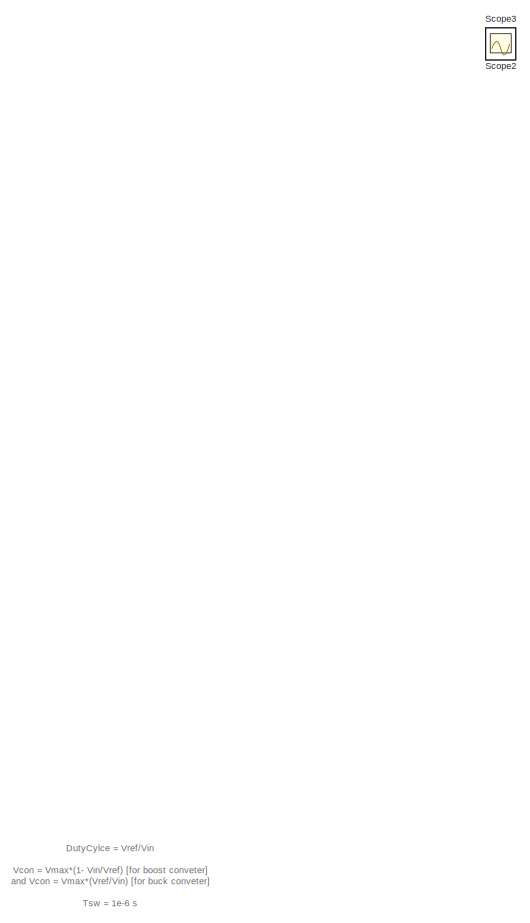
[diagram: root canvas - part 1/2, left side, full height]
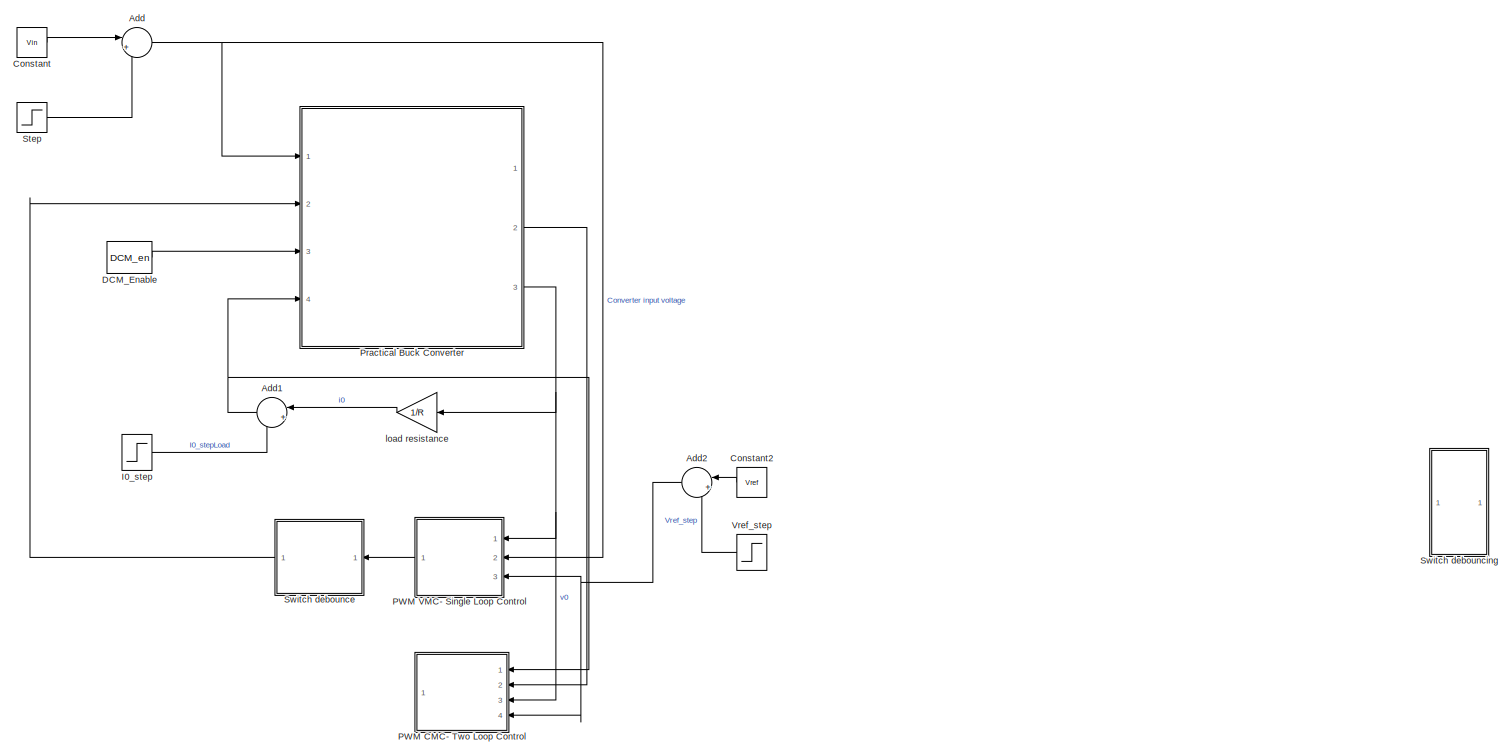
[diagram: root canvas - part 2/2, center side, full height]
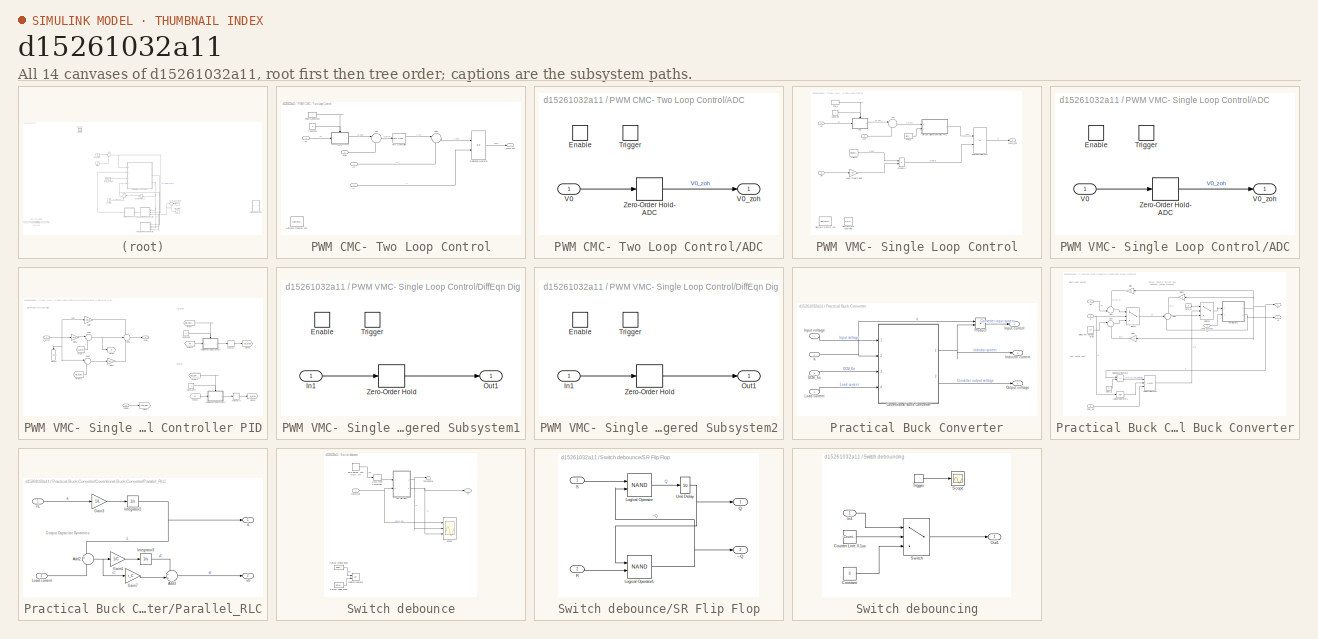
[diagram: thumbnail index - all 14 canvases of the model, root first then tree order]
MODEL slx_d15261032a11
KIND model
CONFIG AbsTol = auto
CONFIG EnableMultiTasking = off
CONFIG FixedStep = Ts
CONFIG InitFcn = %init_practical_voltage_source;\ninit_parameters;
CONFIG MaxStep = auto
CONFIG MinStep = auto
CONFIG PostLoadFcn = , if any(exist('dsrtsu_mdlpostloadfcn', 'file') == [2, 3, 6]), try dsrtsu_mdlpostloadfcn('Execute', bdroot); catch fprintf('Error in PostLoadFcn (dsrtsu_mdlpostloadfcn) for model "%s":\n %s\n', bdroot, lasterr); end, end, \n%init_practical_voltage_source;\ninit_parameters;\n
CONFIG RelTol = 1e-3
CONFIG SampleTimeConstraint = Unconstrained
CONFIG Solver = FixedStepAuto
CONFIG SolverName = FixedStepAuto
CONFIG StartTime = 0.0
CONFIG StopTime = 5e-3
BLOCK [Sum] Add
  IconShape = round
  InputSameDT = off
  Inputs = |++
  OutDataTypeStr = Inherit: Inherit via internal rule
  Ports = [2, 1]
  SaturateOnIntegerOverflow = off
BLOCK [Sum] Add1
  IconShape = round
  InputSameDT = off
  Inputs = |++
  OutDataTypeStr = Inherit: Inherit via internal rule
  Ports = [2, 1]
  SaturateOnIntegerOverflow = off
BLOCK [Sum] Add2
  IconShape = round
  InputSameDT = off
  Inputs = |++
  OutDataTypeStr = Inherit: Inherit via internal rule
  Ports = [2, 1]
  SaturateOnIntegerOverflow = off
BLOCK [Constant] Constant
  Value = Vin
BLOCK [Constant] Constant2
  Value = Vref
BLOCK [Constant] DCM_Enable
  OutDataTypeStr = boolean
  Value = DCM_en
BLOCK [Step] I0_step
  After = I0_final
  SampleTime = Ts
  Time = I0_stepTime
BLOCK [SubSystem] PWM CMC- Two Loop Control
  Ports = [4, 1]
  RequestExecContextInheritance = off
  Variant = off
BLOCK [SubSystem] PWM CMC- Two Loop Control/ADC
  Ports = [1, 1, 1, 1]
  RequestExecContextInheritance = off
  ShowPortLabels = none
  Variant = off
BLOCK [EnablePort] PWM CMC- Two Loop Control/ADC/Enable
  Ports = []
BLOCK [TriggerPort] PWM CMC- Two Loop Control/ADC/Trigger
  PortDimensions = 1
  Ports = []
  StatesWhenEnabling = held
  VariantControl = Variant
BLOCK [Inport] PWM CMC- Two Loop Control/ADC/V0
  IconDisplay = Port number
BLOCK [Outport] PWM CMC- Two Loop Control/ADC/V0_zoh
  IconDisplay = Port number
BLOCK [ZeroOrderHold] PWM CMC- Two Loop Control/ADC/Zero-Order Hold- ADC
  SampleTime = -1
BLOCK [Sum] PWM CMC- Two Loop Control/Add
  IconShape = round
  InputSameDT = off
  Inputs = |-+
  OutDataTypeStr = Inherit: Inherit via internal rule
  Ports = [2, 1]
  SaturateOnIntegerOverflow = off
BLOCK [Sum] PWM CMC- Two Loop Control/Add1
  IconShape = round
  InputSameDT = off
  Inputs = |++
  OutDataTypeStr = Inherit: Inherit via internal rule
  Ports = [2, 1]
  SaturateOnIntegerOverflow = off
BLOCK [Constant] PWM CMC- Two Loop Control/Constant
BLOCK [DiscreteTransferFcn] PWM CMC- Two Loop Control/Discrete Transfer Fcn
  Denominator = [1 -1]
  InputPortMap = u0
  Numerator = [(Kp_d+Ki_d+Kd_d) (-2*Kd_d)+Kp_d];
  Ports = [1, 1]
  SampleTime = Tsw
BLOCK [Inport] PWM CMC- Two Loop Control/I0
  IconDisplay = Port number
BLOCK [Inport] PWM CMC- Two Loop Control/IL
  IconDisplay = Port number
  Port = 2
BLOCK [Reference] PWM CMC- Two Loop Control/PID Controller  REF=simulink/Continuous/PID Controller
  Ports = [1, 1]
  SourceBlock = simulink/Continuous/PID Controller
  SourceProductBaseCode = SL
  SourceProductName = Simulink
  SourceType = PID 1dof
BLOCK [DiscretePulseGenerator] PWM CMC- Two Loop Control/Pulse Generator
  Period = Tsw
  PhaseDelay = t_s
  Ports = [0, 1]
  PulseType = Time based
BLOCK [RelationalOperator] PWM CMC- Two Loop Control/Relational Operator
  InputSameDT = off
  Operator = <=
  OutDataTypeStr = boolean
  Ports = [2, 1]
  RndMeth = Simplest
BLOCK [Inport] PWM CMC- Two Loop Control/V0
  IconDisplay = Port number
  Port = 3
BLOCK [Inport] PWM CMC- Two Loop Control/Vref
  IconDisplay = Port number
  Port = 4
BLOCK [Outport] PWM CMC- Two Loop Control/comp_out
  IconDisplay = Port number
BLOCK [SubSystem] PWM VMC- Single Loop Control
  Ports = [3, 1]
  RequestExecContextInheritance = off
  Variant = off
BLOCK [SubSystem] PWM VMC- Single Loop Control/ADC
  Ports = [1, 1, 1, 1]
  RequestExecContextInheritance = off
  ShowPortLabels = none
  Variant = off
BLOCK [EnablePort] PWM VMC- Single Loop Control/ADC/Enable
  Ports = []
BLOCK [TriggerPort] PWM VMC- Single Loop Control/ADC/Trigger
  PortDimensions = 1
  Ports = []
  StatesWhenEnabling = held
  VariantControl = Variant
BLOCK [Inport] PWM VMC- Single Loop Control/ADC/V0
  IconDisplay = Port number
BLOCK [Outport] PWM VMC- Single Loop Control/ADC/V0_zoh
  IconDisplay = Port number
  InitialOutput = V0_init
BLOCK [ZeroOrderHold] PWM VMC- Single Loop Control/ADC/Zero-Order Hold- ADC
  SampleTime = -1
BLOCK [Sum] PWM VMC- Single Loop Control/Add
  IconShape = round
  InputSameDT = off
  Inputs = |-+
  OutDataTypeStr = Inherit: Inherit via internal rule
  Ports = [2, 1]
  SaturateOnIntegerOverflow = off
BLOCK [Constant] PWM VMC- Single Loop Control/Constant
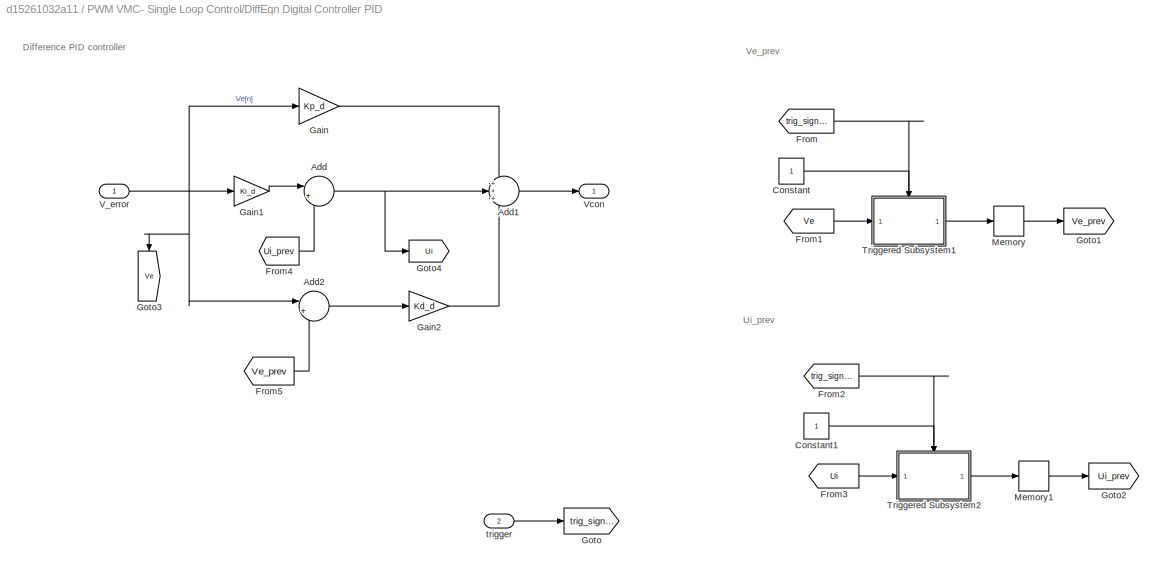
BLOCK [SubSystem] PWM VMC- Single Loop Control/DiffEqn Digital Controller PID
  Ports = [2, 1]
  RequestExecContextInheritance = off
  Variant = off
BLOCK [Sum] PWM VMC- Single Loop Control/DiffEqn Digital Controller PID/Add
  IconShape = round
  InputSameDT = off
  Inputs = |++
  OutDataTypeStr = Inherit: Inherit via internal rule
  Ports = [2, 1]
  SaturateOnIntegerOverflow = off
BLOCK [Sum] PWM VMC- Single Loop Control/DiffEqn Digital Controller PID/Add1
  IconShape = round
  InputSameDT = off
  Inputs = +++
  OutDataTypeStr = Inherit: Inherit via internal rule
  Ports = [3, 1]
  SaturateOnIntegerOverflow = off
BLOCK [Sum] PWM VMC- Single Loop Control/DiffEqn Digital Controller PID/Add2
  IconShape = round
  InputSameDT = off
  Inputs = |+-
  OutDataTypeStr = Inherit: Inherit via internal rule
  Ports = [2, 1]
  SaturateOnIntegerOverflow = off
BLOCK [Constant] PWM VMC- Single Loop Control/DiffEqn Digital Controller PID/Constant
BLOCK [Constant] PWM VMC- Single Loop Control/DiffEqn Digital Controller PID/Constant1
BLOCK [From] PWM VMC- Single Loop Control/DiffEqn Digital Controller PID/From
  GotoTag = trig_signal
BLOCK [From] PWM VMC- Single Loop Control/DiffEqn Digital Controller PID/From1
  GotoTag = Ve
BLOCK [From] PWM VMC- Single Loop Control/DiffEqn Digital Controller PID/From2
  GotoTag = trig_signal
BLOCK [From] PWM VMC- Single Loop Control/DiffEqn Digital Controller PID/From3
  GotoTag = Ui
BLOCK [From] PWM VMC- Single Loop Control/DiffEqn Digital Controller PID/From4
  GotoTag = Ui_prev
BLOCK [From] PWM VMC- Single Loop Control/DiffEqn Digital Controller PID/From5
  GotoTag = Ve_prev
BLOCK [Gain] PWM VMC- Single Loop Control/DiffEqn Digital Controller PID/Gain
  Gain = Kp_d
  OutDataTypeStr = Inherit: Inherit via internal rule
  ParamDataTypeStr = Inherit: Inherit via internal rule
  SaturateOnIntegerOverflow = off
BLOCK [Gain] PWM VMC- Single Loop Control/DiffEqn Digital Controller PID/Gain1
  Gain = Ki_d
  OutDataTypeStr = Inherit: Inherit via internal rule
  ParamDataTypeStr = Inherit: Inherit via internal rule
  SaturateOnIntegerOverflow = off
BLOCK [Gain] PWM VMC- Single Loop Control/DiffEqn Digital Controller PID/Gain2
  Gain = Kd_d
  OutDataTypeStr = Inherit: Inherit via internal rule
  ParamDataTypeStr = Inherit: Inherit via internal rule
  SaturateOnIntegerOverflow = off
BLOCK [Goto] PWM VMC- Single Loop Control/DiffEqn Digital Controller PID/Goto
  GotoTag = trig_signal
BLOCK [Goto] PWM VMC- Single Loop Control/DiffEqn Digital Controller PID/Goto1
  GotoTag = Ve_prev
BLOCK [Goto] PWM VMC- Single Loop Control/DiffEqn Digital Controller PID/Goto2
  GotoTag = Ui_prev
BLOCK [Goto] PWM VMC- Single Loop Control/DiffEqn Digital Controller PID/Goto3
  GotoTag = Ve
BLOCK [Goto] PWM VMC- Single Loop Control/DiffEqn Digital Controller PID/Goto4
  GotoTag = Ui
BLOCK [Memory] PWM VMC- Single Loop Control/DiffEqn Digital Controller PID/Memory
BLOCK [Memory] PWM VMC- Single Loop Control/DiffEqn Digital Controller PID/Memory1
BLOCK [SubSystem] PWM VMC- Single Loop Control/DiffEqn Digital Controller PID/Triggered Subsystem1
  Ports = [1, 1, 1, 1]
  RequestExecContextInheritance = off
  ShowPortLabels = none
  Variant = off
BLOCK [EnablePort] PWM VMC- Single Loop Control/DiffEqn Digital Controller PID/Triggered Subsystem1/Enable
  Ports = []
BLOCK [Inport] PWM VMC- Single Loop Control/DiffEqn Digital Controller PID/Triggered Subsystem1/In1
  IconDisplay = Port number
BLOCK [Outport] PWM VMC- Single Loop Control/DiffEqn Digital Controller PID/Triggered Subsystem1/Out1
  IconDisplay = Port number
BLOCK [TriggerPort] PWM VMC- Single Loop Control/DiffEqn Digital Controller PID/Triggered Subsystem1/Trigger
  PortDimensions = 1
  Ports = []
  StatesWhenEnabling = held
  VariantControl = Variant
BLOCK [ZeroOrderHold] PWM VMC- Single Loop Control/DiffEqn Digital Controller PID/Triggered Subsystem1/Zero-Order Hold
  SampleTime = -1
BLOCK [SubSystem] PWM VMC- Single Loop Control/DiffEqn Digital Controller PID/Triggered Subsystem2
  Ports = [1, 1, 1, 1]
  RequestExecContextInheritance = off
  ShowPortLabels = none
  Variant = off
BLOCK [EnablePort] PWM VMC- Single Loop Control/DiffEqn Digital Controller PID/Triggered Subsystem2/Enable
  Ports = []
BLOCK [Inport] PWM VMC- Single Loop Control/DiffEqn Digital Controller PID/Triggered Subsystem2/In1
  IconDisplay = Port number
BLOCK [Outport] PWM VMC- Single Loop Control/DiffEqn Digital Controller PID/Triggered Subsystem2/Out1
  IconDisplay = Port number
BLOCK [TriggerPort] PWM VMC- Single Loop Control/DiffEqn Digital Controller PID/Triggered Subsystem2/Trigger
  PortDimensions = 1
  Ports = []
  StatesWhenEnabling = held
  VariantControl = Variant
BLOCK [ZeroOrderHold] PWM VMC- Single Loop Control/DiffEqn Digital Controller PID/Triggered Subsystem2/Zero-Order Hold
  SampleTime = -1
BLOCK [Inport] PWM VMC- Single Loop Control/DiffEqn Digital Controller PID/V_error
  IconDisplay = Port number
BLOCK [Outport] PWM VMC- Single Loop Control/DiffEqn Digital Controller PID/Vcon
  IconDisplay = Port number
BLOCK [Inport] PWM VMC- Single Loop Control/DiffEqn Digital Controller PID/trigger
  IconDisplay = Port number
  Port = 2
BLOCK [Reference] PWM VMC- Single Loop Control/Discrete PID Controller  REF=simulink/Continuous/PID Controller
  Commented = on
  Ports = [1, 1]
  SourceBlock = simulink/Continuous/PID Controller
  SourceProductBaseCode = SL
  SourceProductName = Simulink
  SourceType = PID 1dof
BLOCK [DiscreteTransferFcn] PWM VMC- Single Loop Control/Discrete Transfer Fcn
  Commented = on
  Denominator = den_con
  InputPortMap = u0
  Numerator = num_con
  Ports = [1, 1]
  SampleTime = Tsw
BLOCK [DiscretePulseGenerator] PWM VMC- Single Loop Control/Fsw_1
  Period = Tsw
  PhaseDelay = t_s
  Ports = [0, 1]
  PulseType = Time based
BLOCK [DiscretePulseGenerator] PWM VMC- Single Loop Control/Fsw_2
  Period = Tsw
  PhaseDelay = t_del
  Ports = [0, 1]
  PulseType = Time based
BLOCK [Product] PWM VMC- Single Loop Control/Product1
  InputSameDT = off
  OutDataTypeStr = Inherit: Inherit via internal rule
  Ports = [2, 1]
  RndMeth = Floor
  SaturateOnIntegerOverflow = off
BLOCK [RelationalOperator] PWM VMC- Single Loop Control/Relational Operator
  InputSameDT = off
  Operator = <=
  OutDataTypeStr = boolean
  Ports = [2, 1]
  RndMeth = Simplest
BLOCK [Inport] PWM VMC- Single Loop Control/V0
  IconDisplay = Port number
BLOCK [Inport] PWM VMC- Single Loop Control/Vin
  IconDisplay = Port number
  Port = 2
BLOCK [Reference] PWM VMC- Single Loop Control/Vramp  REF=simulink/Sources/Repeating
Sequence
  Ports = [0, 1]
  SourceBlock = simulink/Sources/Repeating\nSequence
  SourceProductBaseCode = SL
  SourceType = Repeating table
BLOCK [Inport] PWM VMC- Single Loop Control/Vref
  IconDisplay = Port number
  Port = 3
BLOCK [Outport] PWM VMC- Single Loop Control/comp_out
  IconDisplay = Port number
BLOCK [Gain] PWM VMC- Single Loop Control/feed-forward gain
  Gain = Vff
  OutDataTypeStr = Inherit: Inherit via internal rule
  ParamDataTypeStr = Inherit: Inherit via internal rule
  SaturateOnIntegerOverflow = off
BLOCK [SubSystem] Practical Buck Converter
  Ports = [4, 3]
  RequestExecContextInheritance = off
  Variant = off
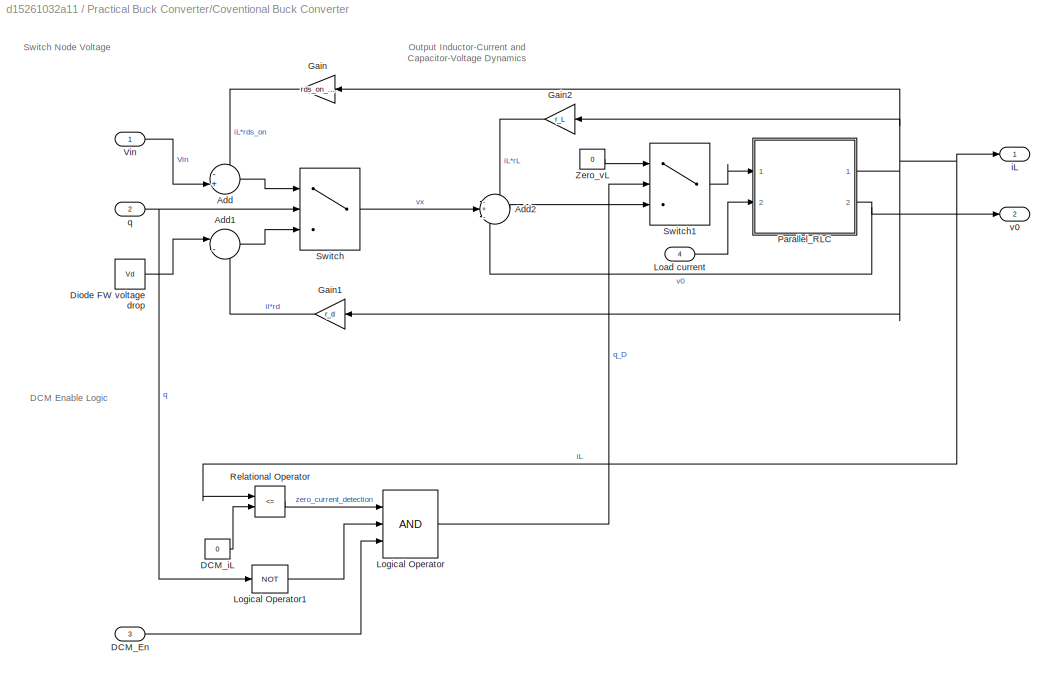
BLOCK [SubSystem] Practical Buck Converter/Coventional Buck Converter
  Ports = [4, 2]
  RequestExecContextInheritance = off
  Variant = off
BLOCK [Sum] Practical Buck Converter/Coventional Buck Converter/Add
  IconShape = round
  InputSameDT = off
  Inputs = -+|
  OutDataTypeStr = Inherit: Inherit via internal rule
  Ports = [2, 1]
  SaturateOnIntegerOverflow = off
BLOCK [Sum] Practical Buck Converter/Coventional Buck Converter/Add1
  IconShape = round
  InputSameDT = off
  Inputs = |--
  OutDataTypeStr = Inherit: Inherit via internal rule
  Ports = [2, 1]
  SaturateOnIntegerOverflow = off
BLOCK [Sum] Practical Buck Converter/Coventional Buck Converter/Add2
  IconShape = round
  InputSameDT = off
  Inputs = -+-
  OutDataTypeStr = Inherit: Inherit via internal rule
  Ports = [3, 1]
  SaturateOnIntegerOverflow = off
BLOCK [Inport] Practical Buck Converter/Coventional Buck Converter/DCM_En
  IconDisplay = Port number
  Port = 3
BLOCK [Constant] Practical Buck Converter/Coventional Buck Converter/DCM_iL
  Value = 0
BLOCK [Constant] Practical Buck Converter/Coventional Buck Converter/Diode FW voltage drop
  Value = Vd
BLOCK [Gain] Practical Buck Converter/Coventional Buck Converter/Gain
  Gain = rds_on_sw1
  OutDataTypeStr = Inherit: Inherit via internal rule
  ParamDataTypeStr = Inherit: Inherit via internal rule
  SaturateOnIntegerOverflow = off
BLOCK [Gain] Practical Buck Converter/Coventional Buck Converter/Gain1
  Gain = r_d
  OutDataTypeStr = Inherit: Inherit via internal rule
  ParamDataTypeStr = Inherit: Inherit via internal rule
  SaturateOnIntegerOverflow = off
BLOCK [Gain] Practical Buck Converter/Coventional Buck Converter/Gain2
  Gain = r_L
  OutDataTypeStr = Inherit: Inherit via internal rule
  ParamDataTypeStr = Inherit: Inherit via internal rule
  SaturateOnIntegerOverflow = off
BLOCK [Inport] Practical Buck Converter/Coventional Buck Converter/Load current
  IconDisplay = Port number
  Port = 4
BLOCK [Logic] Practical Buck Converter/Coventional Buck Converter/Logical Operator
  AllPortsSameDT = off
  IconShape = distinctive
  Inputs = 3
  OutDataTypeStr = boolean
  Ports = [3, 1]
BLOCK [Logic] Practical Buck Converter/Coventional Buck Converter/Logical Operator1
  AllPortsSameDT = off
  IconShape = distinctive
  Inputs = 3
  Operator = NOT
  OutDataTypeStr = boolean
  Ports = [1, 1]
BLOCK [SubSystem] Practical Buck Converter/Coventional Buck Converter/Parallel_RLC
  Ports = [2, 2]
  RequestExecContextInheritance = off
  Variant = off
BLOCK [Sum] Practical Buck Converter/Coventional Buck Converter/Parallel_RLC/Add2
  IconShape = round
  InputSameDT = off
  Inputs = +|-
  OutDataTypeStr = Inherit: Inherit via internal rule
  Ports = [2, 1]
  SaturateOnIntegerOverflow = off
BLOCK [Sum] Practical Buck Converter/Coventional Buck Converter/Parallel_RLC/Add3
  IconShape = round
  InputSameDT = off
  Inputs = ++|
  OutDataTypeStr = Inherit: Inherit via internal rule
  Ports = [2, 1]
  SaturateOnIntegerOverflow = off
BLOCK [Gain] Practical Buck Converter/Coventional Buck Converter/Parallel_RLC/Gain3
  Gain = 1/L
  OutDataTypeStr = Inherit: Inherit via internal rule
  ParamDataTypeStr = Inherit: Inherit via internal rule
  SaturateOnIntegerOverflow = off
BLOCK [Gain] Practical Buck Converter/Coventional Buck Converter/Parallel_RLC/Gain4
  Gain = 1/C
  OutDataTypeStr = Inherit: Inherit via internal rule
  ParamDataTypeStr = Inherit: Inherit via internal rule
  SaturateOnIntegerOverflow = off
BLOCK [Gain] Practical Buck Converter/Coventional Buck Converter/Parallel_RLC/Gain7
  Gain = r_C
  OutDataTypeStr = Inherit: Inherit via internal rule
  ParamDataTypeStr = Inherit: Inherit via internal rule
  SaturateOnIntegerOverflow = off
BLOCK [Integrator] Practical Buck Converter/Coventional Buck Converter/Parallel_RLC/Integrator2
  InitialCondition = i_L_init
  Ports = [1, 1]
BLOCK [Integrator] Practical Buck Converter/Coventional Buck Converter/Parallel_RLC/Integrator3
  InitialCondition = v_C_init
  Ports = [1, 1]
BLOCK [Inport] Practical Buck Converter/Coventional Buck Converter/Parallel_RLC/Load current
  IconDisplay = Port number
  Port = 2
BLOCK [Outport] Practical Buck Converter/Coventional Buck Converter/Parallel_RLC/iL
  IconDisplay = Port number
BLOCK [Outport] Practical Buck Converter/Coventional Buck Converter/Parallel_RLC/v0
  IconDisplay = Port number
  Port = 2
BLOCK [Inport] Practical Buck Converter/Coventional Buck Converter/Parallel_RLC/vL
  IconDisplay = Port number
BLOCK [RelationalOperator] Practical Buck Converter/Coventional Buck Converter/Relational Operator
  InputSameDT = off
  Operator = <=
  OutDataTypeStr = boolean
  Ports = [2, 1]
  RndMeth = Simplest
BLOCK [Switch] Practical Buck Converter/Coventional Buck Converter/Switch
  Criteria = u2 > Threshold
  InputSameDT = off
  SaturateOnIntegerOverflow = off
  Threshold = 0.5
BLOCK [Switch] Practical Buck Converter/Coventional Buck Converter/Switch1
  Criteria = u2 > Threshold
  InputSameDT = off
  SaturateOnIntegerOverflow = off
  Threshold = 0.5
BLOCK [Inport] Practical Buck Converter/Coventional Buck Converter/Vin
  IconDisplay = Port number
BLOCK [Constant] Practical Buck Converter/Coventional Buck Converter/Zero_vL
  Value = 0
BLOCK [Outport] Practical Buck Converter/Coventional Buck Converter/iL
  IconDisplay = Port number
BLOCK [Inport] Practical Buck Converter/Coventional Buck Converter/q
  IconDisplay = Port number
  Port = 2
BLOCK [Outport] Practical Buck Converter/Coventional Buck Converter/v0
  IconDisplay = Port number
  Port = 2
BLOCK [Inport] Practical Buck Converter/DCM_En
  IconDisplay = Port number
  Port = 3
BLOCK [Outport] Practical Buck Converter/Inductor current
  IconDisplay = Port number
  Port = 2
BLOCK [Outport] Practical Buck Converter/Input current
  IconDisplay = Port number
BLOCK [Inport] Practical Buck Converter/Input voltage
  IconDisplay = Port number
BLOCK [Inport] Practical Buck Converter/Load Current
  IconDisplay = Port number
  Port = 4
BLOCK [Outport] Practical Buck Converter/Output voltage
  IconDisplay = Port number
  Port = 3
BLOCK [Product] Practical Buck Converter/Product
  InputSameDT = off
  OutDataTypeStr = Inherit: Inherit via internal rule
  Ports = [2, 1]
  RndMeth = Floor
  SaturateOnIntegerOverflow = off
BLOCK [Inport] Practical Buck Converter/q
  IconDisplay = Port number
  Port = 2
BLOCK [Scope] Scope2
  IOType = viewer
  NumInputPorts = 1
  Ports = []
  ScopeSpecificationString = Simulink.scopes.TimeScopeBlockCfg('CurrentConfiguration', extmgr.ConfigurationSet(extmgr.Configuration('Core','General UI',true),extmgr.Configuration('Core','Source UI',true),extmgr.Configuration('Sources','WiredSimulink',true,'DataLoggingVariableName','ScopeData1'),extmgr.Configuration('Visuals','Time Domain',true,'SerializedDisplays',{struct('MinYLimReal','-0.125','MaxYLimReal','1.125','YLabelRe...<+1482ch>
BLOCK [Scope] Scope3
  IOType = viewer
  NumInputPorts = 1
  Ports = []
  ScopeSpecificationString = Simulink.scopes.TimeScopeBlockCfg('CurrentConfiguration', extmgr.ConfigurationSet(extmgr.Configuration('Core','General UI',true),extmgr.Configuration('Core','Source UI',true),extmgr.Configuration('Sources','WiredSimulink',true,'DataLoggingVariableName','ScopeData2'),extmgr.Configuration('Visuals','Time Domain',true,'SerializedDisplays',{struct('MinYLimReal','-5.75','MaxYLimReal','51.75','YLabelRea...<+1775ch>
BLOCK [Step] Step
  After = Vin_final
  SampleTime = 0
  Time = T_Vin_stepTime
BLOCK [SubSystem] Switch debounce
  Ports = [1, 1]
  RequestExecContextInheritance = off
  Variant = off
BLOCK [DataTypeConversion] Switch debounce/Data Type Conversion
  RndMeth = Floor
  SaturateOnIntegerOverflow = off
BLOCK [Reference] Switch debounce/Detect Falling enge  REF=simulink/Logic and Bit
Operations/Detect
Decrease
  Commented = on
  Ports = [1, 1]
  SourceBlock = simulink/Logic and Bit\nOperations/Detect\nDecrease
  SourceProductBaseCode = SL
  SourceType = Detect Decrease
BLOCK [Reference] Switch debounce/Detect Rising edge  REF=simulink/Logic and Bit
Operations/Detect
Increase
  Commented = on
  Ports = [1, 1]
  SourceBlock = simulink/Logic and Bit\nOperations/Detect\nIncrease
  SourceProductBaseCode = SL
  SourceType = Detect Increase
BLOCK [Logic] Switch debounce/Logical Operator
  AllPortsSameDT = off
  Commented = on
  IconShape = distinctive
  Operator = OR
  OutDataTypeStr = boolean
  Ports = [2, 1]
BLOCK [SubSystem] Switch debounce/SR Flip Flop
  Ports = [2, 2]
  RequestExecContextInheritance = off
  Variant = off
BLOCK [Logic] Switch debounce/SR Flip Flop/Logical Operator
  AllPortsSameDT = off
  IconShape = distinctive
  Operator = NAND
  OutDataTypeStr = boolean
  Ports = [2, 1]
BLOCK [Logic] Switch debounce/SR Flip Flop/Logical Operator1
  AllPortsSameDT = off
  IconShape = distinctive
  Operator = NAND
  OutDataTypeStr = boolean
  Ports = [2, 1]
BLOCK [Outport] Switch debounce/SR Flip Flop/Q
  IconDisplay = Port number
BLOCK [Inport] Switch debounce/SR Flip Flop/R
  IconDisplay = Port number
  Port = 2
BLOCK [Inport] Switch debounce/SR Flip Flop/S
  IconDisplay = Port number
BLOCK [UnitDelay] Switch debounce/SR Flip Flop/Unit Delay
  InputProcessing = Elements as channels (sample based)
  SampleTime = -1
BLOCK [Outport] Switch debounce/SR Flip Flop/~Q
  IconDisplay = Port number
  Port = 2
BLOCK [Scope] Switch debounce/Scope
  NumInputPorts = 3
  Ports = [3]
  ScopeSpecificationString = Simulink.scopes.TimeScopeBlockCfg('CurrentConfiguration', extmgr.ConfigurationSet(extmgr.Configuration('Core','General UI',true),extmgr.Configuration('Core','Source UI',true),extmgr.Configuration('Sources','WiredSimulink',true,'DataLoggingVariableName','ScopeData2'),extmgr.Configuration('Visuals','Time Domain',true,'SerializedDisplays',{struct('MinYLimReal','-0.125','MaxYLimReal','1.125','YLabelRe...<+2796ch>
BLOCK [Terminator] Switch debounce/Terminator
BLOCK [DiscretePulseGenerator] Switch debounce/Time period: Tsw Duty: 1%
  Period = Tsw
  Ports = [0, 1]
  PulseType = Time based
BLOCK [Inport] Switch debounce/comp_out
  IconDisplay = Port number
BLOCK [Outport] Switch debounce/~q
  IconDisplay = Port number
BLOCK [SubSystem] Switch debouncing
  Commented = on
  Ports = [1, 1, 0, 1]
  RequestExecContextInheritance = off
  TreatAsAtomicUnit = on
  Variant = off
BLOCK [Constant] Switch debouncing/Constant
  Value = 0
BLOCK [Reference] Switch debouncing/Counter Linit: 0.1us  REF=simulink/Sources/Counter
Limited
  Ports = [0, 1]
  SourceBlock = simulink/Sources/Counter\nLimited
  SourceProductBaseCode = SL
  SourceType = Counter Limited
BLOCK [Inport] Switch debouncing/In1
  IconDisplay = Port number
BLOCK [Outport] Switch debouncing/Out1
  IconDisplay = Port number
BLOCK [Scope] Switch debouncing/Scope
  NumInputPorts = 1
  Ports = [1]
  ScopeSpecificationString = Simulink.scopes.TimeScopeBlockCfg('CurrentConfiguration', extmgr.ConfigurationSet(extmgr.Configuration('Core','General UI',true),extmgr.Configuration('Core','Source UI',true),extmgr.Configuration('Sources','WiredSimulink',true,'DataLoggingVariableName','ScopeData4'),extmgr.Configuration('Visuals','Time Domain',true,'SerializedDisplays',{struct('MinYLimReal','0.9','MaxYLimReal','1.1','YLabelReal','...<+1357ch>
BLOCK [Switch] Switch debouncing/Switch
  InputSameDT = off
  SaturateOnIntegerOverflow = off
  Threshold = (0.45e-6/Ts) + 1
BLOCK [TriggerPort] Switch debouncing/Trigger
  PortDimensions = 1
  Ports = [0, 1]
  ShowOutputPort = on
  StatesWhenEnabling = held
  VariantControl = Variant
BLOCK [Step] Vref_step
  After = Vref_final
  SampleTime = Ts
  Time = Vref_stepTime
BLOCK [Gain] load resistance
  Gain = 1/R
  OutDataTypeStr = Inherit: Inherit via internal rule
  ParamDataTypeStr = Inherit: Inherit via internal rule
  SaturateOnIntegerOverflow = off
ANNOTATION (root): DutyCylce = Vref/Vin Vcon = Vmax*(1- Vin/Vref) [for boost conveter] and Vcon = Vmax*(Vref/Vin) [for buck conveter] Tsw = 1e-6 s Vref starts with 3.3V and after 1ms, it is set to 2.3V. DutyCycle shall be adapted accordingly and coverter states can be observed. Ideal voltage source is replaced by practical voltage source to aacout for psu output impedance (i.e. output resistance and finit bandwidt) ...<+125ch>
ANNOTATION PWM VMC- Single Loop Control/DiffEqn Digital Controller PID: Difference PID controller
ANNOTATION PWM VMC- Single Loop Control/DiffEqn Digital Controller PID: Ui_prev
ANNOTATION PWM VMC- Single Loop Control/DiffEqn Digital Controller PID: Ve_prev
ANNOTATION Practical Buck Converter/Coventional Buck Converter: DCM Enable Logic
ANNOTATION Practical Buck Converter/Coventional Buck Converter: Output Inductor-Current and Capacitor-Voltage Dynamics
ANNOTATION Practical Buck Converter/Coventional Buck Converter: Switch Node Voltage
ANNOTATION Practical Buck Converter/Coventional Buck Converter/Parallel_RLC: Output Capacitor Dynamics
NET Add1:1 -> PWM CMC- Two Loop Control:1, Practical Buck Converter:4
NET Add2:1 -> PWM CMC- Two Loop Control:4, PWM VMC- Single Loop Control:3
NET Add:1 -> PWM VMC- Single Loop Control:2, Practical Buck Converter:1
LINE Constant2:1 -> Add2:1
LINE Constant:1 -> Add:1
LINE DCM_Enable:1 -> Practical Buck Converter:3
LINE I0_step:1 -> Add1:2
LINE PWM CMC- Two Loop Control/ADC/V0:1 -> PWM CMC- Two Loop Control/ADC/Zero-Order Hold- ADC:1
LINE PWM CMC- Two Loop Control/ADC/Zero-Order Hold- ADC:1 -> PWM CMC- Two Loop Control/ADC/V0_zoh:1
LINE PWM CMC- Two Loop Control/ADC:1 -> PWM CMC- Two Loop Control/Add:1
LINE PWM CMC- Two Loop Control/Add1:1 -> PWM CMC- Two Loop Control/Relational Operator:1
LINE PWM CMC- Two Loop Control/Add:1 -> PWM CMC- Two Loop Control/PID Controller:1
LINE PWM CMC- Two Loop Control/Constant:1 -> PWM CMC- Two Loop Control/ADC:enable
LINE PWM CMC- Two Loop Control/I0:1 -> PWM CMC- Two Loop Control/Add1:2
LINE PWM CMC- Two Loop Control/IL:1 -> PWM CMC- Two Loop Control/Relational Operator:2
LINE PWM CMC- Two Loop Control/PID Controller:1 -> PWM CMC- Two Loop Control/Add1:1
LINE PWM CMC- Two Loop Control/Pulse Generator:1 -> PWM CMC- Two Loop Control/ADC:trigger
LINE PWM CMC- Two Loop Control/Relational Operator:1 -> PWM CMC- Two Loop Control/comp_out:1
LINE PWM CMC- Two Loop Control/V0:1 -> PWM CMC- Two Loop Control/ADC:1
LINE PWM CMC- Two Loop Control/Vref:1 -> PWM CMC- Two Loop Control/Add:2
LINE PWM VMC- Single Loop Control/ADC/V0:1 -> PWM VMC- Single Loop Control/ADC/Zero-Order Hold- ADC:1
LINE PWM VMC- Single Loop Control/ADC/Zero-Order Hold- ADC:1 -> PWM VMC- Single Loop Control/ADC/V0_zoh:1
LINE PWM VMC- Single Loop Control/ADC:1 -> PWM VMC- Single Loop Control/Add:1
LINE PWM VMC- Single Loop Control/Add:1 -> PWM VMC- Single Loop Control/DiffEqn Digital Controller PID:1
LINE PWM VMC- Single Loop Control/Constant:1 -> PWM VMC- Single Loop Control/ADC:enable
LINE PWM VMC- Single Loop Control/DiffEqn Digital Controller PID/Add1:1 -> PWM VMC- Single Loop Control/DiffEqn Digital Controller PID/Vcon:1
LINE PWM VMC- Single Loop Control/DiffEqn Digital Controller PID/Add2:1 -> PWM VMC- Single Loop Control/DiffEqn Digital Controller PID/Gain2:1
NET PWM VMC- Single Loop Control/DiffEqn Digital Controller PID/Add:1 -> PWM VMC- Single Loop Control/DiffEqn Digital Controller PID/Add1:2, PWM VMC- Single Loop Control/DiffEqn Digital Controller PID/Goto4:1
LINE PWM VMC- Single Loop Control/DiffEqn Digital Controller PID/Constant1:1 -> PWM VMC- Single Loop Control/DiffEqn Digital Controller PID/Triggered Subsystem2:enable
LINE PWM VMC- Single Loop Control/DiffEqn Digital Controller PID/Constant:1 -> PWM VMC- Single Loop Control/DiffEqn Digital Controller PID/Triggered Subsystem1:enable
LINE PWM VMC- Single Loop Control/DiffEqn Digital Controller PID/From1:1 -> PWM VMC- Single Loop Control/DiffEqn Digital Controller PID/Triggered Subsystem1:1
LINE PWM VMC- Single Loop Control/DiffEqn Digital Controller PID/From2:1 -> PWM VMC- Single Loop Control/DiffEqn Digital Controller PID/Triggered Subsystem2:trigger
LINE PWM VMC- Single Loop Control/DiffEqn Digital Controller PID/From3:1 -> PWM VMC- Single Loop Control/DiffEqn Digital Controller PID/Triggered Subsystem2:1
LINE PWM VMC- Single Loop Control/DiffEqn Digital Controller PID/From4:1 -> PWM VMC- Single Loop Control/DiffEqn Digital Controller PID/Add:2
LINE PWM VMC- Single Loop Control/DiffEqn Digital Controller PID/From5:1 -> PWM VMC- Single Loop Control/DiffEqn Digital Controller PID/Add2:2
LINE PWM VMC- Single Loop Control/DiffEqn Digital Controller PID/From:1 -> PWM VMC- Single Loop Control/DiffEqn Digital Controller PID/Triggered Subsystem1:trigger
LINE PWM VMC- Single Loop Control/DiffEqn Digital Controller PID/Gain1:1 -> PWM VMC- Single Loop Control/DiffEqn Digital Controller PID/Add:1
LINE PWM VMC- Single Loop Control/DiffEqn Digital Controller PID/Gain2:1 -> PWM VMC- Single Loop Control/DiffEqn Digital Controller PID/Add1:3
LINE PWM VMC- Single Loop Control/DiffEqn Digital Controller PID/Gain:1 -> PWM VMC- Single Loop Control/DiffEqn Digital Controller PID/Add1:1
LINE PWM VMC- Single Loop Control/DiffEqn Digital Controller PID/Memory1:1 -> PWM VMC- Single Loop Control/DiffEqn Digital Controller PID/Goto2:1
LINE PWM VMC- Single Loop Control/DiffEqn Digital Controller PID/Memory:1 -> PWM VMC- Single Loop Control/DiffEqn Digital Controller PID/Goto1:1
LINE PWM VMC- Single Loop Control/DiffEqn Digital Controller PID/Triggered Subsystem1/In1:1 -> PWM VMC- Single Loop Control/DiffEqn Digital Controller PID/Triggered Subsystem1/Zero-Order Hold:1
LINE PWM VMC- Single Loop Control/DiffEqn Digital Controller PID/Triggered Subsystem1/Zero-Order Hold:1 -> PWM VMC- Single Loop Control/DiffEqn Digital Controller PID/Triggered Subsystem1/Out1:1
LINE PWM VMC- Single Loop Control/DiffEqn Digital Controller PID/Triggered Subsystem1:1 -> PWM VMC- Single Loop Control/DiffEqn Digital Controller PID/Memory:1
LINE PWM VMC- Single Loop Control/DiffEqn Digital Controller PID/Triggered Subsystem2/In1:1 -> PWM VMC- Single Loop Control/DiffEqn Digital Controller PID/Triggered Subsystem2/Zero-Order Hold:1
LINE PWM VMC- Single Loop Control/DiffEqn Digital Controller PID/Triggered Subsystem2/Zero-Order Hold:1 -> PWM VMC- Single Loop Control/DiffEqn Digital Controller PID/Triggered Subsystem2/Out1:1
LINE PWM VMC- Single Loop Control/DiffEqn Digital Controller PID/Triggered Subsystem2:1 -> PWM VMC- Single Loop Control/DiffEqn Digital Controller PID/Memory1:1
NET PWM VMC- Single Loop Control/DiffEqn Digital Controller PID/V_error:1 -> PWM VMC- Single Loop Control/DiffEqn Digital Controller PID/Add2:1, PWM VMC- Single Loop Control/DiffEqn Digital Controller PID/Gain1:1, PWM VMC- Single Loop Control/DiffEqn Digital Controller PID/Gain:1, PWM VMC- Single Loop Control/DiffEqn Digital Controller PID/Goto3:1
LINE PWM VMC- Single Loop Control/DiffEqn Digital Controller PID/trigger:1 -> PWM VMC- Single Loop Control/DiffEqn Digital Controller PID/Goto:1
LINE PWM VMC- Single Loop Control/DiffEqn Digital Controller PID:1 -> PWM VMC- Single Loop Control/Relational Operator:1
LINE PWM VMC- Single Loop Control/Fsw_1:1 -> PWM VMC- Single Loop Control/ADC:trigger
LINE PWM VMC- Single Loop Control/Fsw_2:1 -> PWM VMC- Single Loop Control/DiffEqn Digital Controller PID:2
LINE PWM VMC- Single Loop Control/Product1:1 -> PWM VMC- Single Loop Control/Relational Operator:2
LINE PWM VMC- Single Loop Control/Relational Operator:1 -> PWM VMC- Single Loop Control/comp_out:1
LINE PWM VMC- Single Loop Control/V0:1 -> PWM VMC- Single Loop Control/ADC:1
LINE PWM VMC- Single Loop Control/Vin:1 -> PWM VMC- Single Loop Control/feed-forward gain:1
LINE PWM VMC- Single Loop Control/Vramp:1 -> PWM VMC- Single Loop Control/Product1:1
LINE PWM VMC- Single Loop Control/Vref:1 -> PWM VMC- Single Loop Control/Add:2
LINE PWM VMC- Single Loop Control/feed-forward gain:1 -> PWM VMC- Single Loop Control/Product1:2
LINE PWM VMC- Single Loop Control:1 -> Switch debounce:1
LINE Practical Buck Converter/Coventional Buck Converter/Add1:1 -> Practical Buck Converter/Coventional Buck Converter/Switch:3
LINE Practical Buck Converter/Coventional Buck Converter/Add2:1 -> Practical Buck Converter/Coventional Buck Converter/Switch1:3
LINE Practical Buck Converter/Coventional Buck Converter/Add:1 -> Practical Buck Converter/Coventional Buck Converter/Switch:1
LINE Practical Buck Converter/Coventional Buck Converter/DCM_En:1 -> Practical Buck Converter/Coventional Buck Converter/Logical Operator:3
LINE Practical Buck Converter/Coventional Buck Converter/DCM_iL:1 -> Practical Buck Converter/Coventional Buck Converter/Relational Operator:2
LINE Practical Buck Converter/Coventional Buck Converter/Diode FW voltage drop:1 -> Practical Buck Converter/Coventional Buck Converter/Add1:1
LINE Practical Buck Converter/Coventional Buck Converter/Gain1:1 -> Practical Buck Converter/Coventional Buck Converter/Add1:2
LINE Practical Buck Converter/Coventional Buck Converter/Gain2:1 -> Practical Buck Converter/Coventional Buck Converter/Add2:1
LINE Practical Buck Converter/Coventional Buck Converter/Gain:1 -> Practical Buck Converter/Coventional Buck Converter/Add:1
LINE Practical Buck Converter/Coventional Buck Converter/Load current:1 -> Practical Buck Converter/Coventional Buck Converter/Parallel_RLC:2
LINE Practical Buck Converter/Coventional Buck Converter/Logical Operator1:1 -> Practical Buck Converter/Coventional Buck Converter/Logical Operator:2
LINE Practical Buck Converter/Coventional Buck Converter/Logical Operator:1 -> Practical Buck Converter/Coventional Buck Converter/Switch1:2
NET Practical Buck Converter/Coventional Buck Converter/Parallel_RLC/Add2:1 -> Practical Buck Converter/Coventional Buck Converter/Parallel_RLC/Gain4:1, Practical Buck Converter/Coventional Buck Converter/Parallel_RLC/Gain7:1
LINE Practical Buck Converter/Coventional Buck Converter/Parallel_RLC/Add3:1 -> Practical Buck Converter/Coventional Buck Converter/Parallel_RLC/v0:1
LINE Practical Buck Converter/Coventional Buck Converter/Parallel_RLC/Gain3:1 -> Practical Buck Converter/Coventional Buck Converter/Parallel_RLC/Integrator2:1
LINE Practical Buck Converter/Coventional Buck Converter/Parallel_RLC/Gain4:1 -> Practical Buck Converter/Coventional Buck Converter/Parallel_RLC/Integrator3:1
LINE Practical Buck Converter/Coventional Buck Converter/Parallel_RLC/Gain7:1 -> Practical Buck Converter/Coventional Buck Converter/Parallel_RLC/Add3:2
NET Practical Buck Converter/Coventional Buck Converter/Parallel_RLC/Integrator2:1 -> Practical Buck Converter/Coventional Buck Converter/Parallel_RLC/Add2:1, Practical Buck Converter/Coventional Buck Converter/Parallel_RLC/iL:1
LINE Practical Buck Converter/Coventional Buck Converter/Parallel_RLC/Integrator3:1 -> Practical Buck Converter/Coventional Buck Converter/Parallel_RLC/Add3:1
LINE Practical Buck Converter/Coventional Buck Converter/Parallel_RLC/Load current:1 -> Practical Buck Converter/Coventional Buck Converter/Parallel_RLC/Add2:2
LINE Practical Buck Converter/Coventional Buck Converter/Parallel_RLC/vL:1 -> Practical Buck Converter/Coventional Buck Converter/Parallel_RLC/Gain3:1
NET Practical Buck Converter/Coventional Buck Converter/Parallel_RLC:1 -> Practical Buck Converter/Coventional Buck Converter/Gain1:1, Practical Buck Converter/Coventional Buck Converter/Gain2:1, Practical Buck Converter/Coventional Buck Converter/Gain:1, Practical Buck Converter/Coventional Buck Converter/Relational Operator:1, Practical Buck Converter/Coventional Buck Converter/iL:1
NET Practical Buck Converter/Coventional Buck Converter/Parallel_RLC:2 -> Practical Buck Converter/Coventional Buck Converter/Add2:3, Practical Buck Converter/Coventional Buck Converter/v0:1
LINE Practical Buck Converter/Coventional Buck Converter/Relational Operator:1 -> Practical Buck Converter/Coventional Buck Converter/Logical Operator:1
LINE Practical Buck Converter/Coventional Buck Converter/Switch1:1 -> Practical Buck Converter/Coventional Buck Converter/Parallel_RLC:1
LINE Practical Buck Converter/Coventional Buck Converter/Switch:1 -> Practical Buck Converter/Coventional Buck Converter/Add2:2
LINE Practical Buck Converter/Coventional Buck Converter/Vin:1 -> Practical Buck Converter/Coventional Buck Converter/Add:2
LINE Practical Buck Converter/Coventional Buck Converter/Zero_vL:1 -> Practical Buck Converter/Coventional Buck Converter/Switch1:1
NET Practical Buck Converter/Coventional Buck Converter/q:1 -> Practical Buck Converter/Coventional Buck Converter/Logical Operator1:1, Practical Buck Converter/Coventional Buck Converter/Switch:2
NET Practical Buck Converter/Coventional Buck Converter:1 -> Practical Buck Converter/Inductor current:1, Practical Buck Converter/Product:2
LINE Practical Buck Converter/Coventional Buck Converter:2 -> Practical Buck Converter/Output voltage:1
LINE Practical Buck Converter/DCM_En:1 -> Practical Buck Converter/Coventional Buck Converter:3
LINE Practical Buck Converter/Input voltage:1 -> Practical Buck Converter/Coventional Buck Converter:1
LINE Practical Buck Converter/Load Current:1 -> Practical Buck Converter/Coventional Buck Converter:4
LINE Practical Buck Converter/Product:1 -> Practical Buck Converter/Input current:1
NET Practical Buck Converter/q:1 -> Practical Buck Converter/Coventional Buck Converter:2, Practical Buck Converter/Product:1
LINE Practical Buck Converter:2 -> PWM CMC- Two Loop Control:2
NET Practical Buck Converter:3 -> PWM CMC- Two Loop Control:3, PWM VMC- Single Loop Control:1, load resistance:1
LINE Step:1 -> Add:2
LINE Switch debounce/Data Type Conversion:1 -> Switch debounce/SR Flip Flop:1
LINE Switch debounce/Detect Falling enge:1 -> Switch debounce/Logical Operator:2
LINE Switch debounce/Detect Rising edge:1 -> Switch debounce/Logical Operator:1
NET Switch debounce/SR Flip Flop/Logical Operator1:1 -> Switch debounce/SR Flip Flop/Logical Operator:2, Switch debounce/SR Flip Flop/~Q:1
LINE Switch debounce/SR Flip Flop/Logical Operator:1 -> Switch debounce/SR Flip Flop/Unit Delay:1
LINE Switch debounce/SR Flip Flop/R:1 -> Switch debounce/SR Flip Flop/Logical Operator1:2
LINE Switch debounce/SR Flip Flop/S:1 -> Switch debounce/SR Flip Flop/Logical Operator:1
NET Switch debounce/SR Flip Flop/Unit Delay:1 -> Switch debounce/SR Flip Flop/Logical Operator1:1, Switch debounce/SR Flip Flop/Q:1
NET Switch debounce/SR Flip Flop:1 -> Switch debounce/Scope:2, Switch debounce/Terminator:1
NET Switch debounce/SR Flip Flop:2 -> Switch debounce/Scope:3, Switch debounce/~q:1
LINE Switch debounce/Time period: Tsw Duty: 1%:1 -> Switch debounce/Data Type Conversion:1
NET Switch debounce/comp_out:1 -> Switch debounce/SR Flip Flop:2, Switch debounce/Scope:1
LINE Switch debounce:1 -> Practical Buck Converter:2
LINE Switch debouncing/Constant:1 -> Switch debouncing/Switch:3
LINE Switch debouncing/Counter Linit: 0.1us:1 -> Switch debouncing/Switch:2
LINE Switch debouncing/In1:1 -> Switch debouncing/Switch:1
LINE Switch debouncing/Switch:1 -> Switch debouncing/Out1:1
LINE Switch debouncing/Trigger:1 -> Switch debouncing/Scope:1
LINE Vref_step:1 -> Add2:2
LINE load resistance:1 -> Add1:1
note: NET lines group one-source signal fan-out (src -> all destinations, sorted); 1:1 wires keep LINE
